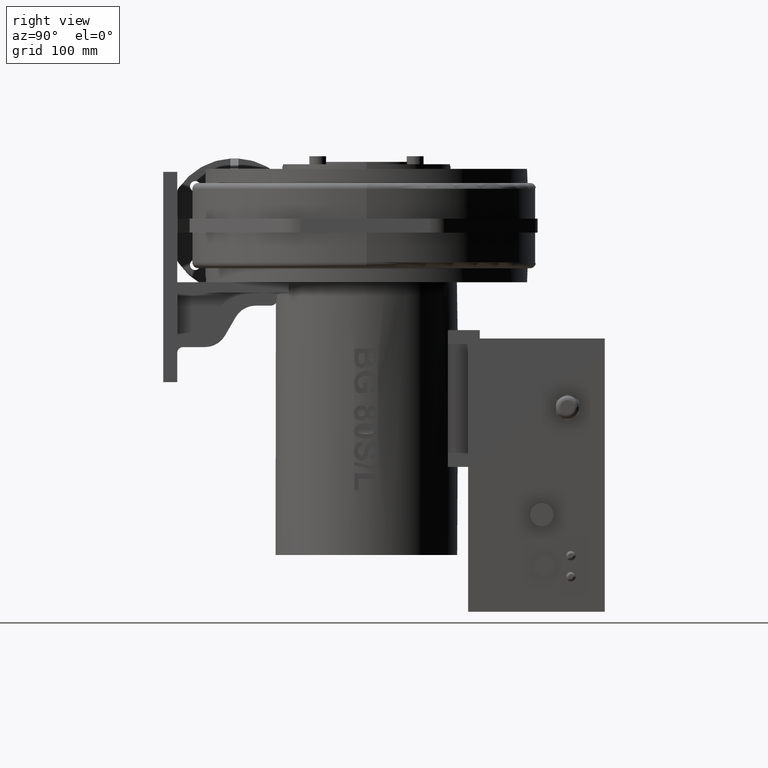
[diagram: clean part render]
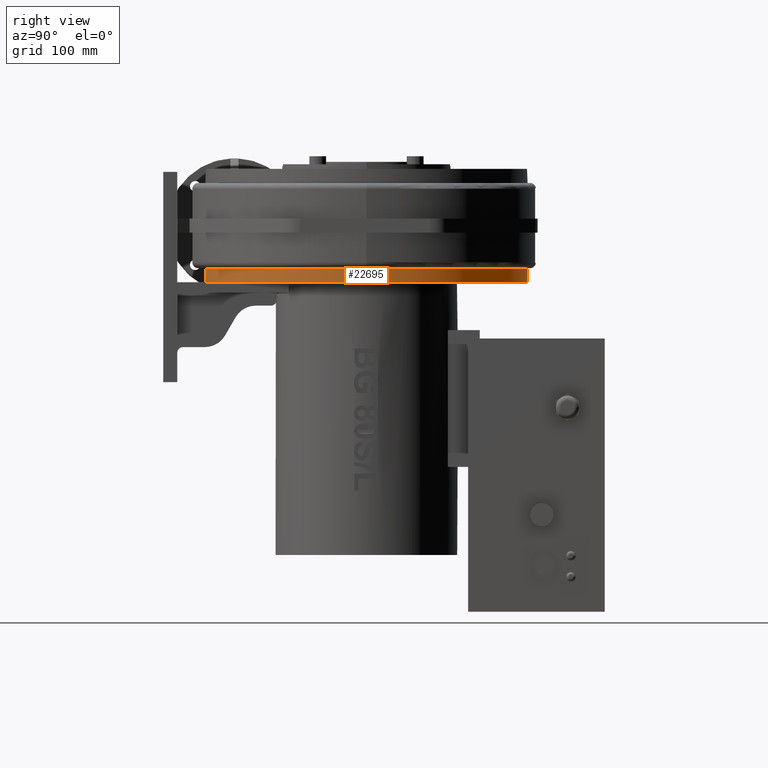
[diagram: same view with one face highlighted and labeled with its STEP entity id]
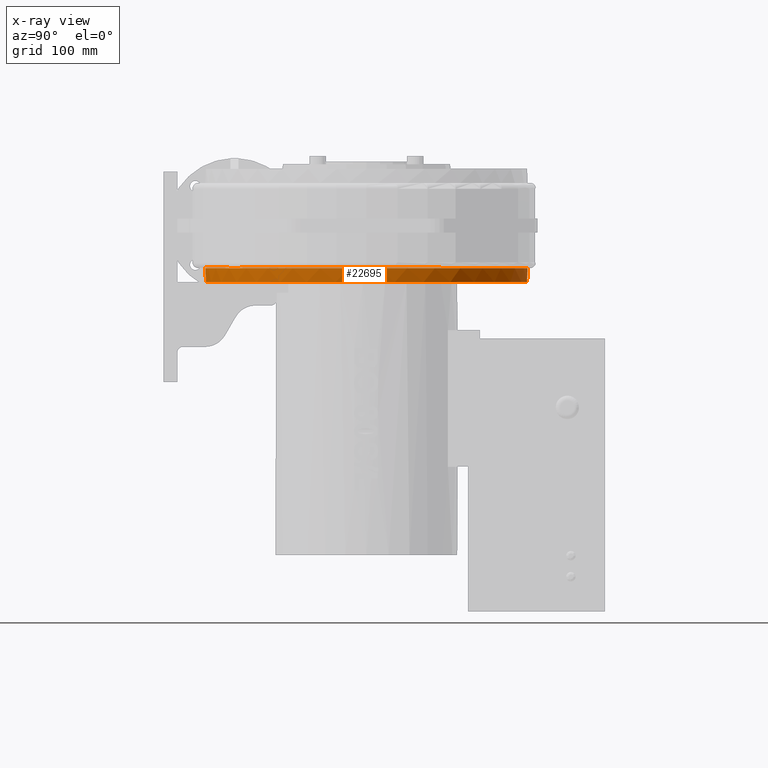
[diagram: x-ray of the same camera — body ghosted, the highlighted face saturated]
A machine part, right view. The second image highlights one B-rep face of the part: STEP entity #22695.
The next image is the same camera in x-ray: the body ghosted, the highlighted face saturated — about 2% of this face is hidden behind the body in this view.
In plain terms, the highlighted cylindrical surface (bore or boss wall) has radius 138 mm, axis along (-0, -0, 1).
Its self-contained STEP definition (entity closure, byte-faithful):
#18199=CARTESIAN_POINT('',(-60.000000000000007,-3.77389106324781,-4.500000000000018));
#18200=VERTEX_POINT('',#18199);
#18207=CARTESIAN_POINT('',(59.999999999999993,-3.773891063247827,-4.500000000000004));
#18208=VERTEX_POINT('',#18207);
#18209=CARTESIAN_POINT('',(3.732078E-015,120.50000000000006,-4.500000000000011));
#18210=DIRECTION('',(0.0,0.0,1.0));
#18211=DIRECTION('',(-1.0,0.0,0.0));
#18212=AXIS2_PLACEMENT_3D('',#18209,#18210,#18211);
#18213=CIRCLE('',#18212,138.0);
#18214=EDGE_CURVE('',#18208,#18200,#18213,.T.);
#21797=CARTESIAN_POINT('',(-1.688885E-014,-17.499999999999947,7.499999999999991));
#21798=VERTEX_POINT('',#21797);
#21799=CARTESIAN_POINT('',(-67.499999999998877,240.86506968385868,7.499999999999929));
#21800=VERTEX_POINT('',#21799);
#21801=CARTESIAN_POINT('',(2.262502E-015,120.50000000000006,7.499999999999991));
#21802=DIRECTION('',(0.0,0.0,1.0));
#21803=DIRECTION('',(-1.0,0.0,0.0));
#21804=AXIS2_PLACEMENT_3D('',#21801,#21802,#21803);
#21805=CIRCLE('',#21804,138.0);
#21806=EDGE_CURVE('',#21798,#21800,#21805,.T.);
#22036=CARTESIAN_POINT('',(-138.0,120.50000000000009,7.917424305044198));
#22037=VERTEX_POINT('',#22036);
#22038=CARTESIAN_POINT('',(-67.499999999998892,240.86506968385874,7.499999999999983));
#22039=CARTESIAN_POINT('',(-79.525715673411312,234.12112137653531,7.499999999999982));
#22040=CARTESIAN_POINT('',(-90.486634083579276,225.60514014107633,7.535530020432253));
#22041=CARTESIAN_POINT('',(-112.68504689061105,202.25910414515539,7.654238607410622));
#22042=CARTESIAN_POINT('',(-122.56904720582172,186.52500246775679,7.747116718033507));
#22043=CARTESIAN_POINT('',(-133.61820082660682,157.30988149502141,7.863494669359663));
#22044=CARTESIAN_POINT('',(-136.46176593479751,144.72767307417973,7.898638854249165));
#22045=CARTESIAN_POINT('',(-137.84192914868751,128.12829198441634,7.91547335847651));
#22046=CARTESIAN_POINT('',(-138.0,124.31347279750352,7.917424305044143));
#22047=CARTESIAN_POINT('',(-138.0,120.50000000000006,7.917424305044143));
#22048=B_SPLINE_CURVE_WITH_KNOTS('',3,(#22038,#22039,#22040,#22041,#22042,#22043,#22044,#22045,#22046,#22047),.UNSPECIFIED.,.F.,.U.,(4,2,2,2,4),(-12.451209824301028,-11.406676537333691,-10.015905578643704,-9.045483297033737,-8.756753006412518),.UNSPECIFIED.);
#22049=EDGE_CURVE('',#21800,#22037,#22048,.T.);
#22348=CARTESIAN_POINT('',(-10.242313409165435,-17.119384593989171,7.917424305043812));
#22349=VERTEX_POINT('',#22348);
#22350=CARTESIAN_POINT('',(-10.242313409165471,-17.119384478719549,7.91742447576016));
#22351=CARTESIAN_POINT('',(-10.15037783220029,-17.126226779760575,7.913800569909019));
#22352=CARTESIAN_POINT('',(-10.058435205500917,-17.132976969969054,7.910170141366963));
#22353=CARTESIAN_POINT('',(-9.9664856641998,-17.139635038097989,7.906533432847104));
#22354=CARTESIAN_POINT('',(-8.759021915180268,-17.227067512370645,7.858776873745854));
#22355=CARTESIAN_POINT('',(-7.550491224075011,-17.298604953997788,7.809942558970274));
#22356=CARTESIAN_POINT('',(-6.341209099673027,-17.354231210912992,7.760580382282355));
#22357=CARTESIAN_POINT('',(-5.357366055010953,-17.399487404535858,7.720420494673162));
#22358=CARTESIAN_POINT('',(-4.3730743481134,-17.434209653521783,7.679913382104316));
#22359=CARTESIAN_POINT('',(-3.388503550574847,-17.458392470741163,7.639351170359725));
#22360=CARTESIAN_POINT('',(-2.25922259581442,-17.486129627872543,7.592827209542845));
#22361=CARTESIAN_POINT('',(-1.129636003248753,-17.500000033451759,7.546233905172305));
#22362=CARTESIAN_POINT('',(-1.693090E-014,-17.499999999999936,7.499999999999991));
#22363=B_SPLINE_CURVE_WITH_KNOTS('',3,(#22350,#22351,#22352,#22353,#22354,#22355,#22356,#22357,#22358,#22359,#22360,#22361,#22362),.UNSPECIFIED.,.F.,.U.,(4,3,3,3,4),(-1.026035858788646,-0.998357174061328,-0.634885992412584,-0.339174522951267,0.0),.UNSPECIFIED.);
#22364=EDGE_CURVE('',#22349,#21798,#22363,.T.);
#22576=CARTESIAN_POINT('',(-65.366202757715143,-1.037070628826058,7.91742430504097));
#22577=VERTEX_POINT('',#22576);
#22578=CARTESIAN_POINT('',(2.211382E-015,120.50000000000006,7.917424305044154));
#22579=DIRECTION('',(0.0,0.0,1.0));
#22580=DIRECTION('',(-1.0,0.0,0.0));
#22581=AXIS2_PLACEMENT_3D('',#22578,#22579,#22580);
#22582=CIRCLE('',#22581,138.0);
#22583=EDGE_CURVE('',#22577,#22349,#22582,.T.);
#22603=CARTESIAN_POINT('',(-90.109046704616262,15.980338203832289,7.917424305044145));
#22604=VERTEX_POINT('',#22603);
#22605=CARTESIAN_POINT('',(2.211382E-015,120.50000000000006,7.917424305044154));
#22606=DIRECTION('',(0.0,0.0,1.0));
#22607=DIRECTION('',(-1.0,0.0,0.0));
#22608=AXIS2_PLACEMENT_3D('',#22605,#22606,#22607);
#22609=CIRCLE('',#22608,138.0);
#22610=EDGE_CURVE('',#22037,#22604,#22609,.T.);
#22666=CARTESIAN_POINT('',(-2.207459E-015,120.50000000000006,43.999999999999993));
#22667=DIRECTION('',(-1.224647E-016,-1.513340E-030,1.0));
#22668=DIRECTION('',(-1.0,0.0,0.0));
#22669=AXIS2_PLACEMENT_3D('',#22666,#22667,#22668);
#22670=CYLINDRICAL_SURFACE('',#22669,138.0);
#22671=ORIENTED_EDGE('',*,*,#18214,.T.);
#22672=CARTESIAN_POINT('',(3.732078E-015,120.50000000000006,-4.50000000000002));
#22673=DIRECTION('',(0.0,0.0,-1.0));
#22674=DIRECTION('',(-1.0,0.0,0.0));
#22675=AXIS2_PLACEMENT_3D('',#22672,#22673,#22674);
#22676=CIRCLE('',#22675,138.0);
#22677=EDGE_CURVE('',#18208,#18200,#22676,.T.);
#22678=ORIENTED_EDGE('',*,*,#22677,.F.);
#22679=EDGE_LOOP('',(#22671,#22678));
#22680=FACE_OUTER_BOUND('',#22679,.T.);
#22681=ORIENTED_EDGE('',*,*,#22364,.F.);
#22682=ORIENTED_EDGE('',*,*,#22583,.F.);
#22683=CARTESIAN_POINT('',(-90.109046704616247,15.980338203832289,7.917424305044146));
#22684=CARTESIAN_POINT('',(-83.069096256905368,9.911018682610667,7.215094728282052));
#22685=CARTESIAN_POINT('',(-74.838227456579432,4.057262184924476,7.531414891474261));
#22686=CARTESIAN_POINT('',(-65.366202757716906,-1.037070628829256,7.917424305041553));
#22687=B_SPLINE_CURVE_WITH_KNOTS('',3,(#22683,#22684,#22685,#22686),.UNSPECIFIED.,.F.,.U.,(4,4),(-6.889381568710578,-3.472802540432458),.UNSPECIFIED.);
#22688=EDGE_CURVE('',#22604,#22577,#22687,.T.);
#22689=ORIENTED_EDGE('',*,*,#22688,.F.);
#22690=ORIENTED_EDGE('',*,*,#22610,.F.);
#22691=ORIENTED_EDGE('',*,*,#22049,.F.);
#22692=ORIENTED_EDGE('',*,*,#21806,.F.);
#22693=EDGE_LOOP('',(#22681,#22682,#22689,#22690,#22691,#22692));
#22694=FACE_BOUND('',#22693,.T.);
#22695=ADVANCED_FACE('',(#22680,#22694),#22670,.T.);